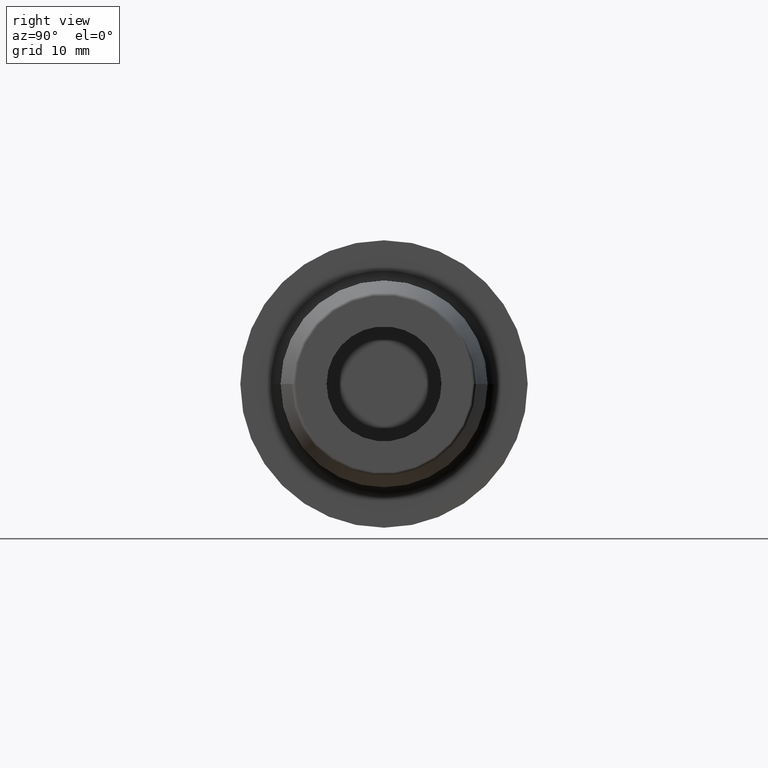
[diagram: clean part render]
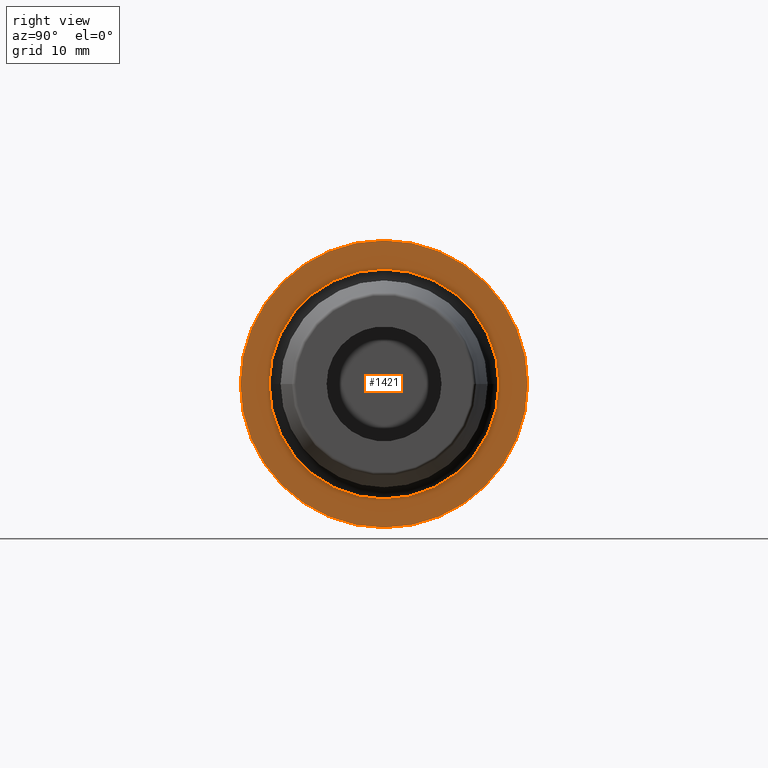
[diagram: same view with one face highlighted and labeled with its STEP entity id]
A machine part, right view. The second image highlights one B-rep face of the part: STEP entity #1421.
In plain terms, the highlighted planar face has unit normal (1, 0, 0).
Its self-contained STEP definition (entity closure, byte-faithful):
#319=CARTESIAN_POINT('',(9.95E0,0.E0,0.E0));
#320=DIRECTION('',(1.E0,0.E0,0.E0));
#321=DIRECTION('',(0.E0,1.E0,0.E0));
#322=AXIS2_PLACEMENT_3D('',#319,#320,#321);
#442=CARTESIAN_POINT('',(9.95E0,0.E0,0.E0));
#443=DIRECTION('',(-1.E0,0.E0,0.E0));
#444=DIRECTION('',(0.E0,1.E0,0.E0));
#445=AXIS2_PLACEMENT_3D('',#442,#443,#444);
#464=CARTESIAN_POINT('',(9.95E0,0.E0,0.E0));
#465=DIRECTION('',(1.E0,0.E0,0.E0));
#466=DIRECTION('',(0.E0,-1.E0,0.E0));
#467=AXIS2_PLACEMENT_3D('',#464,#465,#466);
#469=CARTESIAN_POINT('',(9.95E0,0.E0,0.E0));
#470=DIRECTION('',(1.E0,0.E0,0.E0));
#471=DIRECTION('',(0.E0,1.E0,0.E0));
#472=AXIS2_PLACEMENT_3D('',#469,#470,#471);
#650=CARTESIAN_POINT('',(9.95E0,1.25E1,0.E0));
#651=CARTESIAN_POINT('',(9.95E0,-1.25E1,0.E0));
#652=VERTEX_POINT('',#650);
#653=VERTEX_POINT('',#651);
#706=CARTESIAN_POINT('',(9.95E0,-1.E1,0.E0));
#707=CARTESIAN_POINT('',(9.95E0,1.E1,0.E0));
#708=VERTEX_POINT('',#706);
#709=VERTEX_POINT('',#707);
#1406=CARTESIAN_POINT('',(9.95E0,0.E0,0.E0));
#1407=DIRECTION('',(1.E0,0.E0,0.E0));
#1408=DIRECTION('',(0.E0,-1.E0,0.E0));
#1409=AXIS2_PLACEMENT_3D('',#1406,#1407,#1408);
#1410=PLANE('',#1409);
#1411=ORIENTED_EDGE('',*,*,#1388,.T.);
#1412=ORIENTED_EDGE('',*,*,#1187,.F.);
#1413=EDGE_LOOP('',(#1411,#1412));
#1414=FACE_OUTER_BOUND('',#1413,.F.);
#1416=ORIENTED_EDGE('',*,*,#1415,.T.);
#1418=ORIENTED_EDGE('',*,*,#1417,.T.);
#1419=EDGE_LOOP('',(#1416,#1418));
#1420=FACE_BOUND('',#1419,.F.);
#1421=ADVANCED_FACE('',(#1414,#1420),#1410,.T.);
#323=CIRCLE('',#322,1.25E1);
#446=CIRCLE('',#445,1.25E1);
#468=CIRCLE('',#467,1.E1);
#473=CIRCLE('',#472,1.E1);
#1187=EDGE_CURVE('',#652,#653,#323,.T.);
#1388=EDGE_CURVE('',#652,#653,#446,.T.);
#1415=EDGE_CURVE('',#708,#709,#468,.T.);
#1417=EDGE_CURVE('',#709,#708,#473,.T.);